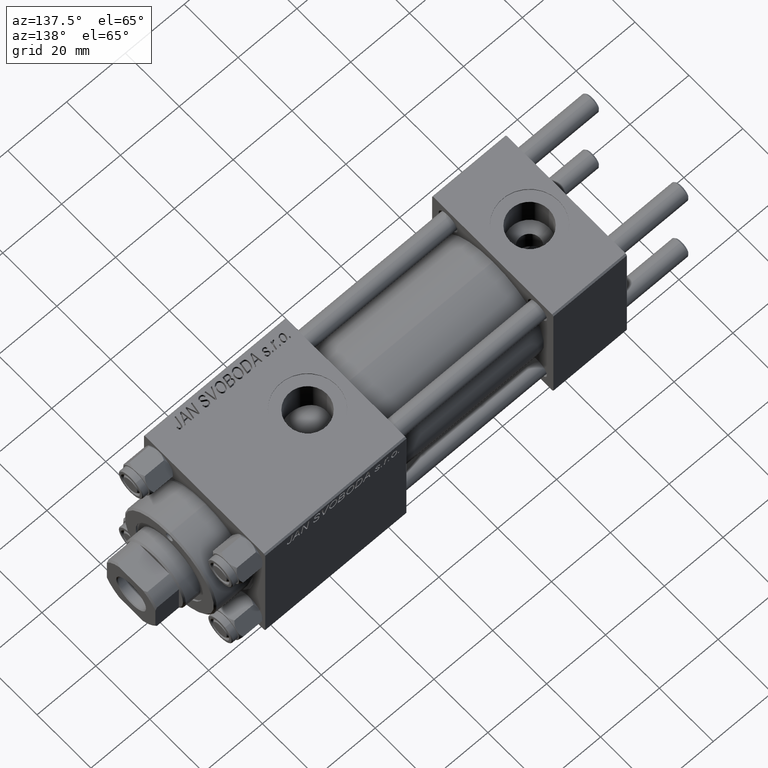
[diagram: clean part render]
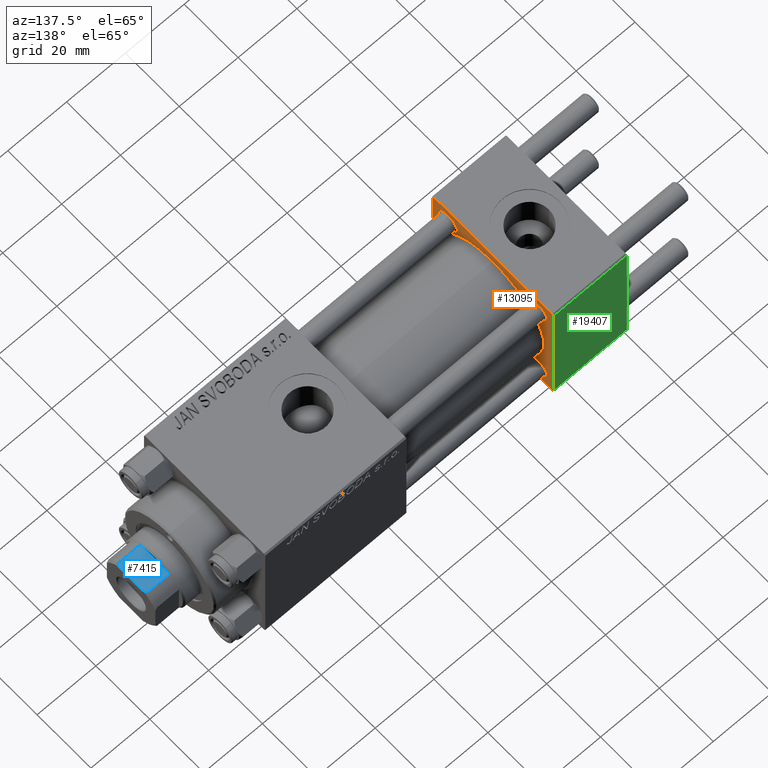
[diagram: same view with three faces highlighted in distinct colors, each labeled with its STEP entity id]
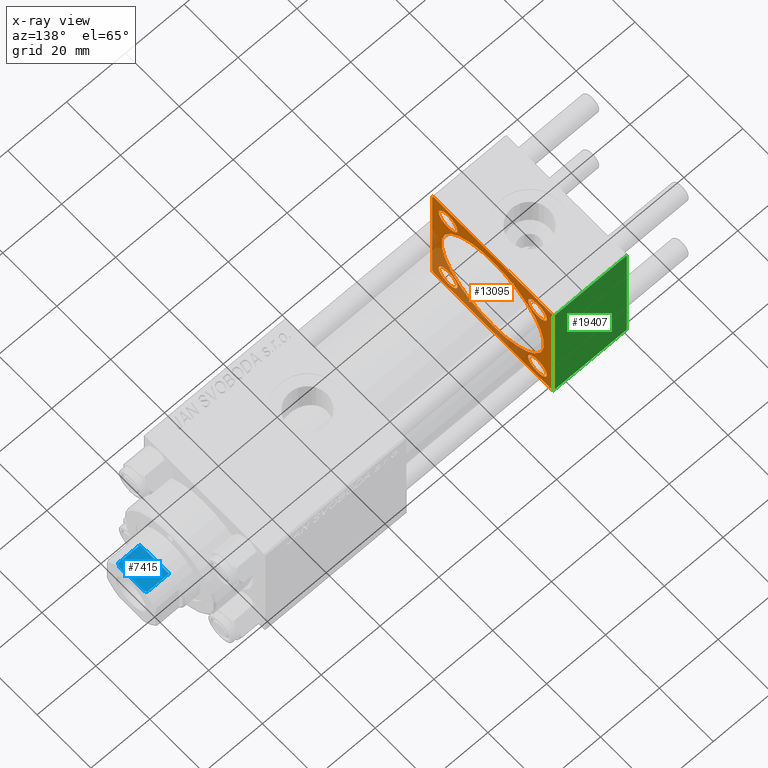
[diagram: x-ray of the same camera — body ghosted, the three highlighted faces saturated]
A machine part, auxiliary view with three faces highlighted in distinct colors.
The next image is the same camera in x-ray (body ghosted, the three faces saturated) — at least one of them is partly hidden behind the body in this view.
Their STEP definitions:

[orange] entity #13095 — the highlighted planar face has unit normal (-1, 0, 0).
#162 = CARTESIAN_POINT ( 'NONE',  ( 25.00000000000000000, 22.50000000000000000, -21.99999999999998224 ) ) ;
#560 = CARTESIAN_POINT ( 'NONE',  ( 25.00000000000000000, 21.99999999999999289, 22.50000000000000355 ) ) ;
#662 = ORIENTED_EDGE ( 'NONE', *, *, #33253, .T. ) ;
#749 = ORIENTED_EDGE ( 'NONE', *, *, #39897, .T. ) ;
#1012 = CARTESIAN_POINT ( 'NONE',  ( 25.00000000000000000, -16.59999999999999076, 16.60000000000000853 ) ) ;
#1154 = AXIS2_PLACEMENT_3D ( 'NONE', #45521, #23231, #15158 ) ;
#1412 = ORIENTED_EDGE ( 'NONE', *, *, #30962, .T. ) ;
#1993 = VECTOR ( 'NONE', #31441, 1000.000000000000114 ) ;
#2405 = EDGE_CURVE ( 'NONE', #10326, #32148, #26182, .T. ) ;
#2877 = CARTESIAN_POINT ( 'NONE',  ( 25.00000000000000000, -16.59999999999999076, 16.60000000000000853 ) ) ;
#3961 = LINE ( 'NONE', #162, #13029 ) ;
#4294 = DIRECTION ( 'NONE',  ( 0.000000000000000000, 0.000000000000000000, 1.000000000000000000 ) ) ;
#4524 = EDGE_LOOP ( 'NONE', ( #45266, #49858 ) ) ;
#4655 = EDGE_CURVE ( 'NONE', #48672, #40560, #19795, .T. ) ;
#4658 = DIRECTION ( 'NONE',  ( -1.000000000000000000, 0.000000000000000000, -0.000000000000000000 ) ) ;
#4665 = LINE ( 'NONE', #19861, #31049 ) ;
#5204 = CARTESIAN_POINT ( 'NONE',  ( 25.00000000000000000, -16.59999999999999076, 20.10000000000000142 ) ) ;
#5408 = CARTESIAN_POINT ( 'NONE',  ( 25.00000000000000000, 16.59999999999999787, -20.10000000000000853 ) ) ;
#5665 = ORIENTED_EDGE ( 'NONE', *, *, #38990, .T. ) ;
#6699 = CARTESIAN_POINT ( 'NONE',  ( 25.00000000000000000, 16.59999999999999787, 16.60000000000000497 ) ) ;
#6859 = ORIENTED_EDGE ( 'NONE', *, *, #20983, .T. ) ;
#6930 = AXIS2_PLACEMENT_3D ( 'NONE', #10008, #24933, #21374 ) ;
#6957 = AXIS2_PLACEMENT_3D ( 'NONE', #36601, #13321, #14348 ) ;
#7137 = AXIS2_PLACEMENT_3D ( 'NONE', #19863, #11786, #35053 ) ;
#7271 = EDGE_CURVE ( 'NONE', #22964, #34324, #21487, .T. ) ;
#7274 = VECTOR ( 'NONE', #24610, 1000.000000000000000 ) ;
#8347 = FACE_BOUND ( 'NONE', #36091, .T. ) ;
#8407 = CARTESIAN_POINT ( 'NONE',  ( 25.00000000000000000, -16.59999999999999076, -13.10000000000001741 ) ) ;
#8527 = EDGE_LOOP ( 'NONE', ( #9061, #42451 ) ) ;
#9061 = ORIENTED_EDGE ( 'NONE', *, *, #30618, .T. ) ;
#9181 = CIRCLE ( 'NONE', #36637, 3.500000000000003109 ) ;
#9302 = LINE ( 'NONE', #25236, #30374 ) ;
#10008 = CARTESIAN_POINT ( 'NONE',  ( 25.00000000000000000, 0.000000000000000000, 0.000000000000000000 ) ) ;
#10326 = VERTEX_POINT ( 'NONE', #5204 ) ;
#11388 = CARTESIAN_POINT ( 'NONE',  ( 25.00000000000000000, 16.59999999999999787, -13.10000000000000142 ) ) ;
#11735 = VECTOR ( 'NONE', #25033, 999.9999999999998863 ) ;
#11786 = DIRECTION ( 'NONE',  ( -1.000000000000000000, 0.000000000000000000, -0.000000000000000000 ) ) ;
#12144 = VERTEX_POINT ( 'NONE', #23297 ) ;
#12156 = FACE_BOUND ( 'NONE', #38089, .T. ) ;
#12270 = EDGE_CURVE ( 'NONE', #35745, #42578, #43482, .T. ) ;
#12325 = ORIENTED_EDGE ( 'NONE', *, *, #23795, .T. ) ;
#12466 = CIRCLE ( 'NONE', #1154, 3.499999999999989342 ) ;
#12542 = VECTOR ( 'NONE', #14524, 1000.000000000000000 ) ;
#12570 = CIRCLE ( 'NONE', #6930, 19.00000000000000000 ) ;
#12633 = FACE_BOUND ( 'NONE', #47710, .T. ) ;
#12953 = CARTESIAN_POINT ( 'NONE',  ( 25.00000000000000000, 16.59999999999999787, -16.60000000000000497 ) ) ;
#13005 = CARTESIAN_POINT ( 'NONE',  ( 25.00000000000000000, -21.99999999999997868, 22.50000000000000000 ) ) ;
#13029 = VECTOR ( 'NONE', #40779, 1000.000000000000000 ) ;
#13095 = ADVANCED_FACE ( 'NONE', ( #46819, #12156, #43023, #8347, #12633, #28064 ), #23780, .F. ) ;
#13220 = CARTESIAN_POINT ( 'NONE',  ( 25.00000000000000000, 22.50000000000000000, 21.99999999999999645 ) ) ;
#13321 = DIRECTION ( 'NONE',  ( 1.000000000000000000, -0.000000000000000000, 0.000000000000000000 ) ) ;
#13792 = CARTESIAN_POINT ( 'NONE',  ( 25.00000000000000000, -21.99999999999997158, -22.50000000000000711 ) ) ;
#14348 = DIRECTION ( 'NONE',  ( 0.000000000000000000, 0.000000000000000000, 1.000000000000000000 ) ) ;
#14524 = DIRECTION ( 'NONE',  ( 0.000000000000000000, -1.000000000000000000, -2.312964634635742957E-16 ) ) ;
#14566 = DIRECTION ( 'NONE',  ( 0.000000000000000000, 0.000000000000000000, 1.000000000000000000 ) ) ;
#14883 = AXIS2_PLACEMENT_3D ( 'NONE', #1012, #47818, #47322 ) ;
#15079 = DIRECTION ( 'NONE',  ( 0.000000000000000000, 0.000000000000000000, -1.000000000000000000 ) ) ;
#15158 = DIRECTION ( 'NONE',  ( 0.000000000000000000, 0.000000000000000000, 1.000000000000000000 ) ) ;
#15459 = VERTEX_POINT ( 'NONE', #13792 ) ;
#16444 = CIRCLE ( 'NONE', #24526, 3.500000000000003109 ) ;
#16720 = AXIS2_PLACEMENT_3D ( 'NONE', #24144, #4658, #23891 ) ;
#17948 = DIRECTION ( 'NONE',  ( -0.000000000000000000, 0.000000000000000000, 1.000000000000000000 ) ) ;
#18303 = LINE ( 'NONE', #37029, #12542 ) ;
#18819 = VERTEX_POINT ( 'NONE', #44299 ) ;
#19065 = ORIENTED_EDGE ( 'NONE', *, *, #35269, .F. ) ;
#19607 = LINE ( 'NONE', #35036, #23039 ) ;
#19795 = LINE ( 'NONE', #560, #1993 ) ;
#19861 = CARTESIAN_POINT ( 'NONE',  ( 25.00000000000000000, -22.50000000000000000, 22.50000000000000000 ) ) ;
#19863 = CARTESIAN_POINT ( 'NONE',  ( 25.00000000000000000, 16.59999999999999787, 16.60000000000000497 ) ) ;
#20196 = VERTEX_POINT ( 'NONE', #11388 ) ;
#20979 = LINE ( 'NONE', #48318, #11735 ) ;
#20983 = EDGE_CURVE ( 'NONE', #12144, #15459, #31966, .T. ) ;
#21374 = DIRECTION ( 'NONE',  ( 0.000000000000000000, 0.000000000000000000, 1.000000000000000000 ) ) ;
#21487 = CIRCLE ( 'NONE', #6957, 19.00000000000000000 ) ;
#22129 = DIRECTION ( 'NONE',  ( -1.000000000000000000, 0.000000000000000000, -0.000000000000000000 ) ) ;
#22924 = VERTEX_POINT ( 'NONE', #8407 ) ;
#22964 = VERTEX_POINT ( 'NONE', #24332 ) ;
#23039 = VECTOR ( 'NONE', #15079, 1000.000000000000000 ) ;
#23231 = DIRECTION ( 'NONE',  ( -1.000000000000000000, 0.000000000000000000, -0.000000000000000000 ) ) ;
#23297 = CARTESIAN_POINT ( 'NONE',  ( 25.00000000000000000, -22.50000000000000000, -21.99999999999997158 ) ) ;
#23780 = PLANE ( 'NONE',  #46746 ) ;
#23795 = EDGE_CURVE ( 'NONE', #24766, #18819, #3961, .T. ) ;
#23891 = DIRECTION ( 'NONE',  ( 0.000000000000000000, 0.000000000000000000, 1.000000000000000000 ) ) ;
#24144 = CARTESIAN_POINT ( 'NONE',  ( 25.00000000000000000, -16.59999999999999076, -16.60000000000000853 ) ) ;
#24332 = CARTESIAN_POINT ( 'NONE',  ( 25.00000000000000000, 0.000000000000000000, 19.00000000000000000 ) ) ;
#24485 = ORIENTED_EDGE ( 'NONE', *, *, #12270, .T. ) ;
#24526 = AXIS2_PLACEMENT_3D ( 'NONE', #26598, #38730, #4294 ) ;
#24610 = DIRECTION ( 'NONE',  ( 0.000000000000000000, 0.7071067811865426878, -0.7071067811865524577 ) ) ;
#24766 = VERTEX_POINT ( 'NONE', #42119 ) ;
#24933 = DIRECTION ( 'NONE',  ( 1.000000000000000000, -0.000000000000000000, 0.000000000000000000 ) ) ;
#25033 = DIRECTION ( 'NONE',  ( -0.000000000000000000, -0.7071067811865525687, -0.7071067811865425767 ) ) ;
#25236 = CARTESIAN_POINT ( 'NONE',  ( 25.00000000000000000, 22.50000000000000000, 22.50000000000000355 ) ) ;
#26151 = VERTEX_POINT ( 'NONE', #26725 ) ;
#26182 = CIRCLE ( 'NONE', #14883, 3.499999999999992895 ) ;
#26211 = EDGE_CURVE ( 'NONE', #34677, #12144, #4665, .T. ) ;
#26279 = VERTEX_POINT ( 'NONE', #13005 ) ;
#26598 = CARTESIAN_POINT ( 'NONE',  ( 25.00000000000000000, 16.59999999999999787, -16.60000000000000497 ) ) ;
#26656 = ORIENTED_EDGE ( 'NONE', *, *, #26211, .T. ) ;
#26725 = CARTESIAN_POINT ( 'NONE',  ( 25.00000000000000000, -16.59999999999999076, -20.09999999999999787 ) ) ;
#28064 = FACE_OUTER_BOUND ( 'NONE', #39448, .T. ) ;
#28563 = DIRECTION ( 'NONE',  ( -1.000000000000000000, 0.000000000000000000, -0.000000000000000000 ) ) ;
#29687 = CARTESIAN_POINT ( 'NONE',  ( 25.00000000000000000, 21.99999999999999289, 22.50000000000000355 ) ) ;
#30023 = ORIENTED_EDGE ( 'NONE', *, *, #4655, .T. ) ;
#30374 = VECTOR ( 'NONE', #44732, 1000.000000000000000 ) ;
#30618 = EDGE_CURVE ( 'NONE', #32148, #10326, #45520, .T. ) ;
#30962 = EDGE_CURVE ( 'NONE', #20196, #45052, #16444, .T. ) ;
#31049 = VECTOR ( 'NONE', #46929, 1000.000000000000000 ) ;
#31300 = CIRCLE ( 'NONE', #16720, 3.499999999999989342 ) ;
#31441 = DIRECTION ( 'NONE',  ( 0.000000000000000000, -0.7071067811865474617, 0.7071067811865474617 ) ) ;
#31474 = EDGE_CURVE ( 'NONE', #45052, #20196, #9181, .T. ) ;
#31966 = LINE ( 'NONE', #47149, #7274 ) ;
#32148 = VERTEX_POINT ( 'NONE', #37635 ) ;
#32811 = ORIENTED_EDGE ( 'NONE', *, *, #31474, .T. ) ;
#32883 = CARTESIAN_POINT ( 'NONE',  ( 25.00000000000000000, 0.000000000000000000, 0.000000000000000000 ) ) ;
#33253 = EDGE_CURVE ( 'NONE', #42578, #35745, #38365, .T. ) ;
#33642 = ORIENTED_EDGE ( 'NONE', *, *, #7271, .F. ) ;
#34324 = VERTEX_POINT ( 'NONE', #35695 ) ;
#34677 = VERTEX_POINT ( 'NONE', #35343 ) ;
#34996 = AXIS2_PLACEMENT_3D ( 'NONE', #2877, #45636, #49436 ) ;
#35024 = EDGE_CURVE ( 'NONE', #48672, #18819, #19607, .T. ) ;
#35036 = CARTESIAN_POINT ( 'NONE',  ( 25.00000000000000000, 22.50000000000000000, 22.50000000000000355 ) ) ;
#35053 = DIRECTION ( 'NONE',  ( 0.000000000000000000, 0.000000000000000000, 1.000000000000000000 ) ) ;
#35269 = EDGE_CURVE ( 'NONE', #24766, #15459, #18303, .T. ) ;
#35343 = CARTESIAN_POINT ( 'NONE',  ( 25.00000000000000000, -22.50000000000000000, 22.00000000000000000 ) ) ;
#35494 = DIRECTION ( 'NONE',  ( -1.000000000000000000, 0.000000000000000000, -0.000000000000000000 ) ) ;
#35695 = CARTESIAN_POINT ( 'NONE',  ( 25.00000000000000000, 2.326828918379970970E-15, -19.00000000000000000 ) ) ;
#35745 = VERTEX_POINT ( 'NONE', #46063 ) ;
#36091 = EDGE_LOOP ( 'NONE', ( #24485, #662 ) ) ;
#36126 = CARTESIAN_POINT ( 'NONE',  ( 25.00000000000000000, 16.59999999999999787, 20.10000000000000853 ) ) ;
#36601 = CARTESIAN_POINT ( 'NONE',  ( 25.00000000000000000, 0.000000000000000000, 0.000000000000000000 ) ) ;
#36637 = AXIS2_PLACEMENT_3D ( 'NONE', #12953, #35494, #44837 ) ;
#37029 = CARTESIAN_POINT ( 'NONE',  ( 25.00000000000000000, 22.50000000000000000, -22.49999999999999645 ) ) ;
#37345 = EDGE_CURVE ( 'NONE', #26151, #22924, #12466, .T. ) ;
#37635 = CARTESIAN_POINT ( 'NONE',  ( 25.00000000000000000, -16.59999999999999076, 13.10000000000001386 ) ) ;
#38089 = EDGE_LOOP ( 'NONE', ( #32811, #1412 ) ) ;
#38365 = CIRCLE ( 'NONE', #40756, 3.500000000000003109 ) ;
#38730 = DIRECTION ( 'NONE',  ( -1.000000000000000000, 0.000000000000000000, -0.000000000000000000 ) ) ;
#38990 = EDGE_CURVE ( 'NONE', #26279, #34677, #20979, .T. ) ;
#39448 = EDGE_LOOP ( 'NONE', ( #19065, #12325, #41575, #30023, #749, #5665, #26656, #6859 ) ) ;
#39897 = EDGE_CURVE ( 'NONE', #40560, #26279, #9302, .T. ) ;
#40166 = EDGE_CURVE ( 'NONE', #34324, #22964, #12570, .T. ) ;
#40560 = VERTEX_POINT ( 'NONE', #29687 ) ;
#40756 = AXIS2_PLACEMENT_3D ( 'NONE', #6699, #22129, #14566 ) ;
#40779 = DIRECTION ( 'NONE',  ( -0.000000000000000000, 0.7071067811865426878, 0.7071067811865524577 ) ) ;
#41575 = ORIENTED_EDGE ( 'NONE', *, *, #35024, .F. ) ;
#42119 = CARTESIAN_POINT ( 'NONE',  ( 25.00000000000000000, 21.99999999999999289, -22.49999999999999645 ) ) ;
#42451 = ORIENTED_EDGE ( 'NONE', *, *, #2405, .T. ) ;
#42578 = VERTEX_POINT ( 'NONE', #36126 ) ;
#43023 = FACE_BOUND ( 'NONE', #8527, .T. ) ;
#43482 = CIRCLE ( 'NONE', #7137, 3.500000000000003109 ) ;
#43894 = EDGE_CURVE ( 'NONE', #22924, #26151, #31300, .T. ) ;
#44299 = CARTESIAN_POINT ( 'NONE',  ( 25.00000000000000000, 22.50000000000000000, -21.99999999999996803 ) ) ;
#44732 = DIRECTION ( 'NONE',  ( 0.000000000000000000, -1.000000000000000000, -7.709882115452476934E-17 ) ) ;
#44837 = DIRECTION ( 'NONE',  ( 0.000000000000000000, 0.000000000000000000, 1.000000000000000000 ) ) ;
#45052 = VERTEX_POINT ( 'NONE', #5408 ) ;
#45266 = ORIENTED_EDGE ( 'NONE', *, *, #37345, .T. ) ;
#45520 = CIRCLE ( 'NONE', #34996, 3.499999999999992895 ) ;
#45521 = CARTESIAN_POINT ( 'NONE',  ( 25.00000000000000000, -16.59999999999999076, -16.60000000000000853 ) ) ;
#45636 = DIRECTION ( 'NONE',  ( -1.000000000000000000, 0.000000000000000000, -0.000000000000000000 ) ) ;
#46063 = CARTESIAN_POINT ( 'NONE',  ( 25.00000000000000000, 16.59999999999999787, 13.10000000000000142 ) ) ;
#46746 = AXIS2_PLACEMENT_3D ( 'NONE', #32883, #28563, #17948 ) ;
#46819 = FACE_BOUND ( 'NONE', #4524, .T. ) ;
#46929 = DIRECTION ( 'NONE',  ( 0.000000000000000000, 0.000000000000000000, -1.000000000000000000 ) ) ;
#47149 = CARTESIAN_POINT ( 'NONE',  ( 25.00000000000000000, -21.99999999999998579, -22.50000000000000711 ) ) ;
#47322 = DIRECTION ( 'NONE',  ( 0.000000000000000000, 0.000000000000000000, 1.000000000000000000 ) ) ;
#47710 = EDGE_LOOP ( 'NONE', ( #33642, #49797 ) ) ;
#47818 = DIRECTION ( 'NONE',  ( -1.000000000000000000, 0.000000000000000000, -0.000000000000000000 ) ) ;
#48318 = CARTESIAN_POINT ( 'NONE',  ( 25.00000000000000000, -22.50000000000000000, 22.00000000000000000 ) ) ;
#48672 = VERTEX_POINT ( 'NONE', #13220 ) ;
#49436 = DIRECTION ( 'NONE',  ( 0.000000000000000000, 0.000000000000000000, 1.000000000000000000 ) ) ;
#49797 = ORIENTED_EDGE ( 'NONE', *, *, #40166, .F. ) ;
#49858 = ORIENTED_EDGE ( 'NONE', *, *, #43894, .T. ) ;

[blue] entity #7415 — the highlighted planar face has unit normal (-0, 0, -1).
#72 = VERTEX_POINT ( 'NONE', #43884 ) ;
#862 = VECTOR ( 'NONE', #47799, 1000.000000000000000 ) ;
#1134 = CARTESIAN_POINT ( 'NONE',  ( 5.063687070142448121, -8.999999999999998224, 122.6775166608139216 ) ) ;
#1270 = DIRECTION ( 'NONE',  ( 1.000000000000000000, 0.000000000000000000, 0.000000000000000000 ) ) ;
#4305 = LINE ( 'NONE', #32117, #862 ) ;
#4310 = CARTESIAN_POINT ( 'NONE',  ( -5.408326913195988794, -8.999999999999998224, 122.5000000000000000 ) ) ;
#5228 = VECTOR ( 'NONE', #40016, 1000.000000000000000 ) ;
#6220 = VERTEX_POINT ( 'NONE', #13816 ) ;
#7353 = EDGE_CURVE ( 'NONE', #30874, #27677, #8800, .T. ) ;
#7415 = ADVANCED_FACE ( 'NONE', ( #18642 ), #38130, .F. ) ;
#8800 = B_SPLINE_CURVE_WITH_KNOTS ( 'NONE', 3,
 ( #34822, #10794, #41915, #50008 ),
 .UNSPECIFIED., .F., .F.,
 ( 4, 4 ),
 ( 0.000000000000000000, 0.001162453897363199080 ),
 .UNSPECIFIED. ) ;
#8982 = CARTESIAN_POINT ( 'NONE',  ( 4.714305797500245809, -9.000000000000001776, 122.8450817439748448 ) ) ;
#10794 = CARTESIAN_POINT ( 'NONE',  ( -4.714305797500247586, -9.000000000000001776, 122.8450817439748448 ) ) ;
#11597 = VERTEX_POINT ( 'NONE', #26430 ) ;
#12851 = VECTOR ( 'NONE', #31524, 1000.000000000000000 ) ;
#12955 = CARTESIAN_POINT ( 'NONE',  ( -9.000000000000001776, -9.000000000000001776, 115.0000000000000000 ) ) ;
#13816 = CARTESIAN_POINT ( 'NONE',  ( -5.408326913195988794, -8.999999999999998224, 115.0000000000000284 ) ) ;
#14591 = EDGE_CURVE ( 'NONE', #6220, #27677, #19637, .T. ) ;
#15103 = DIRECTION ( 'NONE',  ( 0.000000000000000000, 1.000000000000000000, 0.000000000000000000 ) ) ;
#16076 = DIRECTION ( 'NONE',  ( 0.000000000000000000, -0.000000000000000000, 1.000000000000000000 ) ) ;
#16114 = ORIENTED_EDGE ( 'NONE', *, *, #7353, .T. ) ;
#16643 = AXIS2_PLACEMENT_3D ( 'NONE', #18887, #15103, #16076 ) ;
#16820 = CARTESIAN_POINT ( 'NONE',  ( 4.358898943540667759, -9.000000000000001776, 123.0000000000000000 ) ) ;
#18642 = FACE_OUTER_BOUND ( 'NONE', #18944, .T. ) ;
#18887 = CARTESIAN_POINT ( 'NONE',  ( -9.000000000000001776, -9.000000000000001776, 123.0000000000000000 ) ) ;
#18944 = EDGE_LOOP ( 'NONE', ( #28541, #20398, #23273, #16114, #19307, #40755 ) ) ;
#19307 = ORIENTED_EDGE ( 'NONE', *, *, #14591, .F. ) ;
#19637 = LINE ( 'NONE', #35067, #12851 ) ;
#20398 = ORIENTED_EDGE ( 'NONE', *, *, #24656, .T. ) ;
#20492 = CARTESIAN_POINT ( 'NONE',  ( -9.000000000000001776, -9.000000000000001776, 123.0000000000000000 ) ) ;
#23225 = EDGE_CURVE ( 'NONE', #72, #30221, #4305, .T. ) ;
#23273 = ORIENTED_EDGE ( 'NONE', *, *, #29283, .F. ) ;
#23643 = VECTOR ( 'NONE', #1270, 1000.000000000000000 ) ;
#24656 = EDGE_CURVE ( 'NONE', #30221, #11597, #30937, .T. ) ;
#26430 = CARTESIAN_POINT ( 'NONE',  ( 4.358898943540667759, -9.000000000000001776, 123.0000000000000000 ) ) ;
#27677 = VERTEX_POINT ( 'NONE', #4310 ) ;
#27711 = CARTESIAN_POINT ( 'NONE',  ( 5.408326913195988794, -8.999999999999998224, 122.5000000000000000 ) ) ;
#28541 = ORIENTED_EDGE ( 'NONE', *, *, #23225, .T. ) ;
#29283 = EDGE_CURVE ( 'NONE', #30874, #11597, #40674, .T. ) ;
#30221 = VERTEX_POINT ( 'NONE', #35401 ) ;
#30874 = VERTEX_POINT ( 'NONE', #49870 ) ;
#30937 = B_SPLINE_CURVE_WITH_KNOTS ( 'NONE', 3,
 ( #27711, #1134, #8982, #16820 ),
 .UNSPECIFIED., .F., .F.,
 ( 4, 4 ),
 ( 0.000000000000000000, 0.001162453897363199080 ),
 .UNSPECIFIED. ) ;
#31524 = DIRECTION ( 'NONE',  ( -0.000000000000000000, -0.000000000000000000, 1.000000000000000000 ) ) ;
#32117 = CARTESIAN_POINT ( 'NONE',  ( 5.408326913195988794, -8.999999999999998224, -0.001000000000001000089 ) ) ;
#34822 = CARTESIAN_POINT ( 'NONE',  ( -4.358898943540667759, -9.000000000000001776, 123.0000000000000000 ) ) ;
#35067 = CARTESIAN_POINT ( 'NONE',  ( -5.408326913195988794, -8.999999999999998224, -0.001000000000001000089 ) ) ;
#35401 = CARTESIAN_POINT ( 'NONE',  ( 5.408326913195988794, -8.999999999999998224, 122.5000000000000000 ) ) ;
#38130 = PLANE ( 'NONE',  #16643 ) ;
#38829 = EDGE_CURVE ( 'NONE', #6220, #72, #47623, .T. ) ;
#40016 = DIRECTION ( 'NONE',  ( 1.000000000000000000, 0.000000000000000000, 0.000000000000000000 ) ) ;
#40674 = LINE ( 'NONE', #20492, #23643 ) ;
#40755 = ORIENTED_EDGE ( 'NONE', *, *, #38829, .T. ) ;
#41915 = CARTESIAN_POINT ( 'NONE',  ( -5.063687070142449009, -9.000000000000001776, 122.6775166608139216 ) ) ;
#43884 = CARTESIAN_POINT ( 'NONE',  ( 5.408326913195988794, -8.999999999999998224, 115.0000000000000284 ) ) ;
#47623 = LINE ( 'NONE', #12955, #5228 ) ;
#47799 = DIRECTION ( 'NONE',  ( -0.000000000000000000, -0.000000000000000000, 1.000000000000000000 ) ) ;
#49870 = CARTESIAN_POINT ( 'NONE',  ( -4.358898943540667759, -9.000000000000001776, 123.0000000000000000 ) ) ;
#50008 = CARTESIAN_POINT ( 'NONE',  ( -5.408326913195988794, -8.999999999999998224, 122.5000000000000000 ) ) ;

[green] entity #19407 — the highlighted planar face has unit normal (0, 1, 0).
#5017 = ORIENTED_EDGE ( 'NONE', *, *, #14468, .T. ) ;
#7708 = EDGE_CURVE ( 'NONE', #42570, #20579, #45650, .T. ) ;
#7946 = ORIENTED_EDGE ( 'NONE', *, *, #15650, .T. ) ;
#10588 = ORIENTED_EDGE ( 'NONE', *, *, #35024, .T. ) ;
#10973 = PLANE ( 'NONE',  #30693 ) ;
#13220 = CARTESIAN_POINT ( 'NONE',  ( 25.00000000000000000, 22.50000000000000000, 21.99999999999999645 ) ) ;
#14468 = EDGE_CURVE ( 'NONE', #18819, #20579, #29135, .T. ) ;
#15057 = LINE ( 'NONE', #42356, #23316 ) ;
#15079 = DIRECTION ( 'NONE',  ( 0.000000000000000000, 0.000000000000000000, -1.000000000000000000 ) ) ;
#15650 = EDGE_CURVE ( 'NONE', #42570, #48672, #15057, .T. ) ;
#17355 = DIRECTION ( 'NONE',  ( 0.000000000000000000, -0.000000000000000000, 1.000000000000000000 ) ) ;
#18819 = VERTEX_POINT ( 'NONE', #44299 ) ;
#19407 = ADVANCED_FACE ( 'NONE', ( #22850 ), #10973, .T. ) ;
#19607 = LINE ( 'NONE', #35036, #23039 ) ;
#20579 = VERTEX_POINT ( 'NONE', #38648 ) ;
#22363 = EDGE_LOOP ( 'NONE', ( #10588, #5017, #40073, #7946 ) ) ;
#22850 = FACE_OUTER_BOUND ( 'NONE', #22363, .T. ) ;
#23039 = VECTOR ( 'NONE', #15079, 1000.000000000000000 ) ;
#23316 = VECTOR ( 'NONE', #27170, 1000.000000000000000 ) ;
#26368 = VECTOR ( 'NONE', #41854, 1000.000000000000000 ) ;
#26427 = CARTESIAN_POINT ( 'NONE',  ( 0.000000000000000000, 22.50000000000000000, 22.50000000000000355 ) ) ;
#27170 = DIRECTION ( 'NONE',  ( 1.000000000000000000, 0.000000000000000000, 0.000000000000000000 ) ) ;
#28732 = DIRECTION ( 'NONE',  ( -0.000000000000000000, 1.000000000000000000, 0.000000000000000000 ) ) ;
#29135 = LINE ( 'NONE', #37230, #41159 ) ;
#30693 = AXIS2_PLACEMENT_3D ( 'NONE', #38294, #28732, #17355 ) ;
#35024 = EDGE_CURVE ( 'NONE', #48672, #18819, #19607, .T. ) ;
#35036 = CARTESIAN_POINT ( 'NONE',  ( 25.00000000000000000, 22.50000000000000000, 22.50000000000000355 ) ) ;
#36976 = DIRECTION ( 'NONE',  ( -1.000000000000000000, 0.000000000000000000, 0.000000000000000000 ) ) ;
#37230 = CARTESIAN_POINT ( 'NONE',  ( 25.00000000000000000, 22.50000000000000000, -21.99999999999998224 ) ) ;
#38294 = CARTESIAN_POINT ( 'NONE',  ( 25.00000000000000000, 22.50000000000000000, 22.50000000000000355 ) ) ;
#38648 = CARTESIAN_POINT ( 'NONE',  ( 0.000000000000000000, 22.50000000000000000, -21.99999999999996803 ) ) ;
#40073 = ORIENTED_EDGE ( 'NONE', *, *, #7708, .F. ) ;
#41159 = VECTOR ( 'NONE', #36976, 1000.000000000000000 ) ;
#41854 = DIRECTION ( 'NONE',  ( 0.000000000000000000, 0.000000000000000000, -1.000000000000000000 ) ) ;
#42356 = CARTESIAN_POINT ( 'NONE',  ( 25.00000000000000000, 22.50000000000000000, 21.99999999999999645 ) ) ;
#42570 = VERTEX_POINT ( 'NONE', #44231 ) ;
#44231 = CARTESIAN_POINT ( 'NONE',  ( 0.000000000000000000, 22.50000000000000000, 21.99999999999999645 ) ) ;
#44299 = CARTESIAN_POINT ( 'NONE',  ( 25.00000000000000000, 22.50000000000000000, -21.99999999999996803 ) ) ;
#45650 = LINE ( 'NONE', #26427, #26368 ) ;
#48672 = VERTEX_POINT ( 'NONE', #13220 ) ;